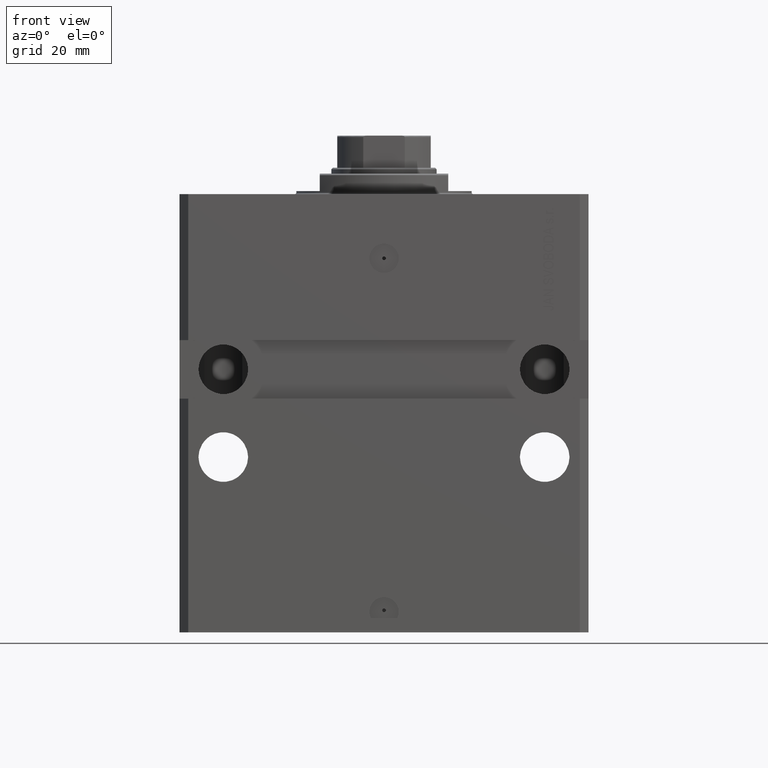
[diagram: clean part render]
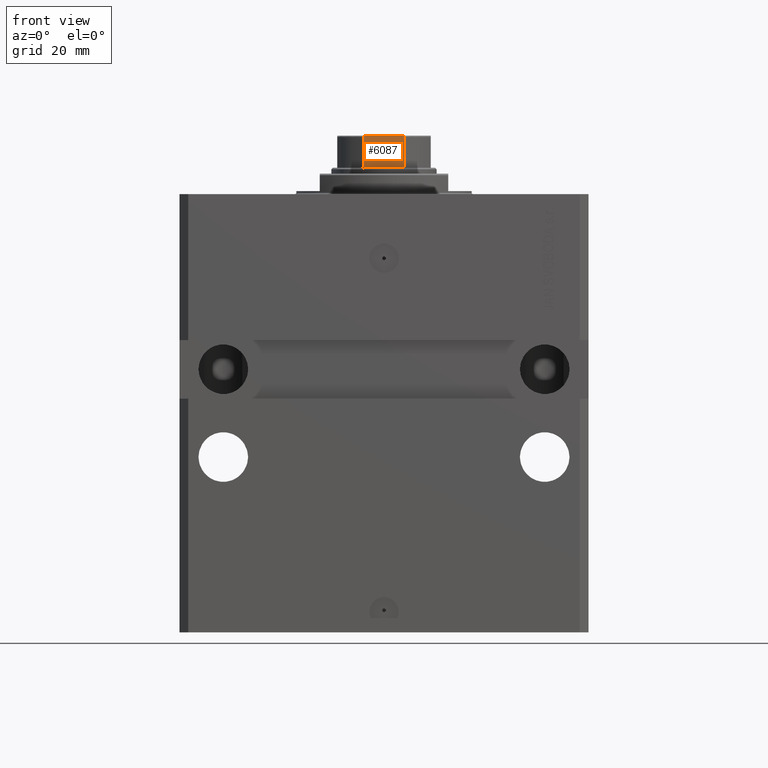
[diagram: same view with one face highlighted and labeled with its STEP entity id]
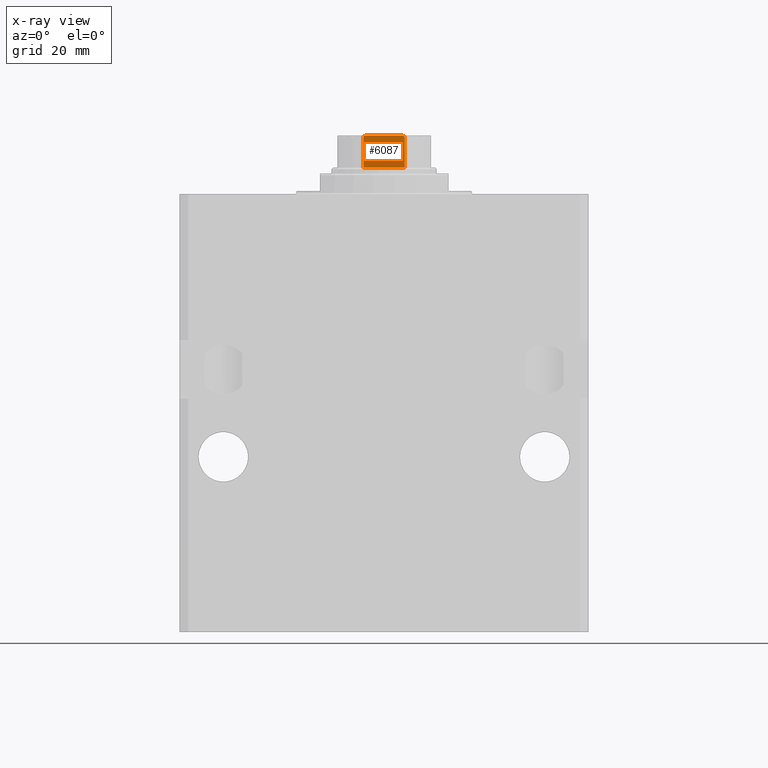
[diagram: x-ray of the same camera — body ghosted, the highlighted face saturated]
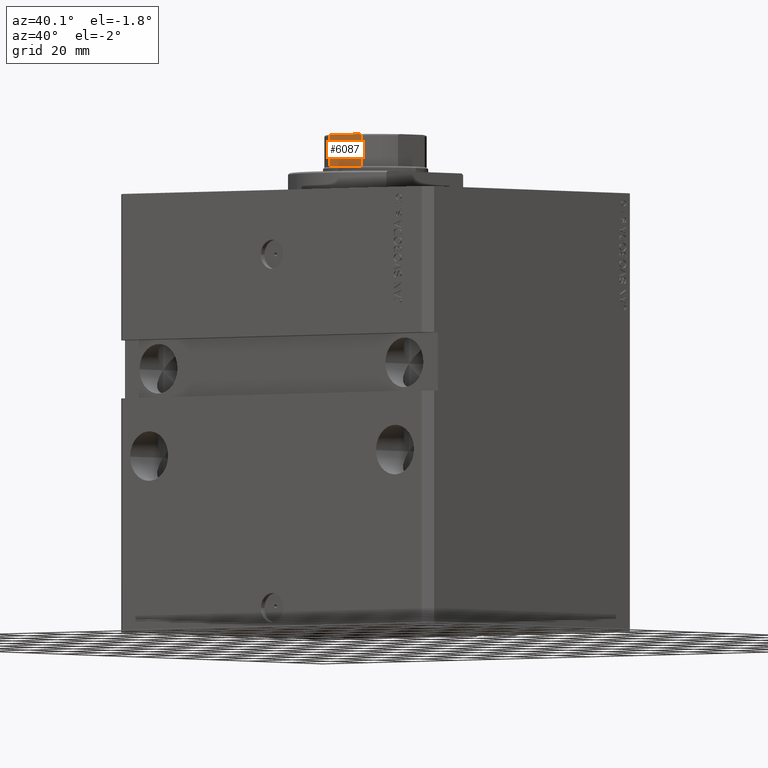
[diagram: same view with one face highlighted and labeled with its STEP entity id]
A machine part, front view. The second image highlights one B-rep face of the part: STEP entity #6087.
The next image is the same camera in x-ray: the body ghosted, the highlighted face saturated — about 0% of this face is hidden behind the body in this view.
A second angle (auxiliary view) of the same face is appended — the face is thin or edge-on in the first view.
In plain terms, the highlighted planar face has unit normal (-0, 1, 0).
Its self-contained STEP definition (entity closure, byte-faithful):
#157 = DIRECTION ( 'NONE',  ( 1.000000000000000000, 1.084202172485504434E-16, 0.000000000000000000 ) ) ;
#524 = CARTESIAN_POINT ( 'NONE',  ( -15.99999999999999645, -16.00000000000000355, 145.0000000000000284 ) ) ;
#911 = VERTEX_POINT ( 'NONE', #21505 ) ;
#1248 = DIRECTION ( 'NONE',  ( -1.000000000000000000, -1.084202172485504557E-16, 0.000000000000000000 ) ) ;
#1627 = CARTESIAN_POINT ( 'NONE',  ( 6.252433022027788390, -15.99999999999999645, 144.9806157152108028 ) ) ;
#2950 = EDGE_LOOP ( 'NONE', ( #17814, #28926, #8378, #10478, #40175, #35683 ) ) ;
#3762 = VERTEX_POINT ( 'NONE', #21296 ) ;
#4114 = VERTEX_POINT ( 'NONE', #9024 ) ;
#6087 = ADVANCED_FACE ( 'NONE', ( #42150 ), #38644, .F. ) ;
#7224 = EDGE_CURVE ( 'NONE', #34318, #17354, #9428, .T. ) ;
#7810 = VECTOR ( 'NONE', #157, 1000.000000000000000 ) ;
#8378 = ORIENTED_EDGE ( 'NONE', *, *, #37321, .F. ) ;
#8872 = CARTESIAN_POINT ( 'NONE',  ( 5.999773414835112284, -16.00000000000000000, 145.0000000000000284 ) ) ;
#9024 = CARTESIAN_POINT ( 'NONE',  ( -7.088723439378916247, -16.00000000000000000, 134.0000000000000000 ) ) ;
#9358 = VECTOR ( 'NONE', #39822, 1000.000000000000000 ) ;
#9428 = LINE ( 'NONE', #46842, #9358 ) ;
#9481 = CARTESIAN_POINT ( 'NONE',  ( -7.088723439378916247, -16.00000000000000000, 144.4999999999999716 ) ) ;
#10017 = EDGE_CURVE ( 'NONE', #3762, #32556, #45890, .T. ) ;
#10478 = ORIENTED_EDGE ( 'NONE', *, *, #41661, .T. ) ;
#11741 = DIRECTION ( 'NONE',  ( -0.000000000000000000, -0.000000000000000000, 1.000000000000000000 ) ) ;
#12333 = EDGE_CURVE ( 'NONE', #34318, #911, #26996, .T. ) ;
#12976 = CARTESIAN_POINT ( 'NONE',  ( 5.744562646538024175, -16.00000000000000355, 145.0000000000000284 ) ) ;
#14617 = CARTESIAN_POINT ( 'NONE',  ( -15.99999999999999645, -16.00000000000000355, 134.0000000000000000 ) ) ;
#16709 = CARTESIAN_POINT ( 'NONE',  ( -7.088723439378912694, -16.00000000000000000, 144.5655697653146206 ) ) ;
#16833 = CARTESIAN_POINT ( 'NONE',  ( 6.914772706552231973, -15.99999999999999645, 144.7576711345670617 ) ) ;
#17354 = VERTEX_POINT ( 'NONE', #12976 ) ;
#17566 = CARTESIAN_POINT ( 'NONE',  ( 7.055665994487682724, -16.00000000000000000, 144.6256422470904397 ) ) ;
#17814 = ORIENTED_EDGE ( 'NONE', *, *, #7224, .F. ) ;
#21167 = CARTESIAN_POINT ( 'NONE',  ( -6.620608993398032993, -16.00000000000000000, 144.8919184437073113 ) ) ;
#21296 = CARTESIAN_POINT ( 'NONE',  ( 7.088723439378916247, -16.00000000000000000, 133.9999999999999432 ) ) ;
#21505 = CARTESIAN_POINT ( 'NONE',  ( -7.088723439378916247, -16.00000000000000000, 144.4999999999999716 ) ) ;
#23945 = CARTESIAN_POINT ( 'NONE',  ( -6.744478600285234826, -16.00000000000000000, 144.8522542963852402 ) ) ;
#24174 = DIRECTION ( 'NONE',  ( -1.084202172485504557E-16, 1.000000000000000000, 0.000000000000000000 ) ) ;
#24186 = CARTESIAN_POINT ( 'NONE',  ( -7.055793701721102984, -16.00000000000000355, 144.6256279161198108 ) ) ;
#25318 = CARTESIAN_POINT ( 'NONE',  ( 7.088723439378916247, -16.00000000000000000, 144.4999999999999716 ) ) ;
#26601 = B_SPLINE_CURVE_WITH_KNOTS ( 'NONE', 3,
 ( #47996, #31783, #17566, #32761, #16833, #36021, #35774, #1627, #8872, #47018 ),
 .UNSPECIFIED., .F., .F.,
 ( 4, 2, 2, 2, 4 ),
 ( 5.632511157154733508E-17, 0.0001928955851490132573, 0.0003857911702979701903, 0.0007715823405958411761, 0.001543164681191583039 ),
 .UNSPECIFIED. ) ;
#26798 = EDGE_CURVE ( 'NONE', #32556, #17354, #26601, .T. ) ;
#26996 = B_SPLINE_CURVE_WITH_KNOTS ( 'NONE', 3,
 ( #43380, #31659, #35654, #21167, #23945, #46893, #32629, #24186, #16709, #9481 ),
 .UNSPECIFIED., .F., .F.,
 ( 4, 2, 2, 2, 4 ),
 ( 0.000000000000000000, 0.0007561879621635715426, 0.001134281943245365716, 0.001323328933786282590, 0.001512375924327199247 ),
 .UNSPECIFIED. ) ;
#28926 = ORIENTED_EDGE ( 'NONE', *, *, #12333, .T. ) ;
#30432 = LINE ( 'NONE', #34919, #33906 ) ;
#31659 = CARTESIAN_POINT ( 'NONE',  ( -5.999698100840009651, -16.00000000000000355, 145.0000000000000284 ) ) ;
#31783 = CARTESIAN_POINT ( 'NONE',  ( 7.088723439378916247, -16.00000000000000355, 144.5653596029795551 ) ) ;
#32556 = VERTEX_POINT ( 'NONE', #25318 ) ;
#32629 = CARTESIAN_POINT ( 'NONE',  ( -6.967626683430045098, -16.00000000000000355, 144.7212986014228875 ) ) ;
#32761 = CARTESIAN_POINT ( 'NONE',  ( 6.968475375953092410, -15.99999999999999645, 144.7205009019615716 ) ) ;
#33299 = LINE ( 'NONE', #14617, #7810 ) ;
#33906 = VECTOR ( 'NONE', #38898, 1000.000000000000000 ) ;
#34318 = VERTEX_POINT ( 'NONE', #41663 ) ;
#34919 = CARTESIAN_POINT ( 'NONE',  ( -7.088723439378916247, -16.00000000000000000, -0.001000000000001000089 ) ) ;
#35654 = CARTESIAN_POINT ( 'NONE',  ( -6.251780714621296475, -16.00000000000000355, 144.9805079891187063 ) ) ;
#35683 = ORIENTED_EDGE ( 'NONE', *, *, #26798, .T. ) ;
#35774 = CARTESIAN_POINT ( 'NONE',  ( 6.623467753754316512, -16.00000000000000355, 144.8910978819201887 ) ) ;
#36021 = CARTESIAN_POINT ( 'NONE',  ( 6.746962372739905511, -16.00000000000000355, 144.8511068297690656 ) ) ;
#37321 = EDGE_CURVE ( 'NONE', #4114, #911, #30432, .T. ) ;
#38083 = VECTOR ( 'NONE', #11741, 1000.000000000000000 ) ;
#38644 = PLANE ( 'NONE',  #38781 ) ;
#38781 = AXIS2_PLACEMENT_3D ( 'NONE', #524, #24174, #1248 ) ;
#38898 = DIRECTION ( 'NONE',  ( -0.000000000000000000, -0.000000000000000000, 1.000000000000000000 ) ) ;
#39822 = DIRECTION ( 'NONE',  ( 1.000000000000000000, 1.084202172485504434E-16, 0.000000000000000000 ) ) ;
#40175 = ORIENTED_EDGE ( 'NONE', *, *, #10017, .T. ) ;
#41656 = CARTESIAN_POINT ( 'NONE',  ( 7.088723439378916247, -16.00000000000000000, -0.001000000000001000089 ) ) ;
#41661 = EDGE_CURVE ( 'NONE', #4114, #3762, #33299, .T. ) ;
#41663 = CARTESIAN_POINT ( 'NONE',  ( -5.744562646538029504, -16.00000000000000355, 145.0000000000000284 ) ) ;
#42150 = FACE_OUTER_BOUND ( 'NONE', #2950, .T. ) ;
#43380 = CARTESIAN_POINT ( 'NONE',  ( -5.744562646538029504, -16.00000000000000355, 145.0000000000000284 ) ) ;
#45890 = LINE ( 'NONE', #41656, #38083 ) ;
#46842 = CARTESIAN_POINT ( 'NONE',  ( -15.99999999999999645, -16.00000000000000355, 145.0000000000000284 ) ) ;
#46893 = CARTESIAN_POINT ( 'NONE',  ( -6.914158745692660979, -16.00000000000000711, 144.7581288012990797 ) ) ;
#47018 = CARTESIAN_POINT ( 'NONE',  ( 5.744562646538024175, -16.00000000000000355, 145.0000000000000284 ) ) ;
#47996 = CARTESIAN_POINT ( 'NONE',  ( 7.088723439378916247, -16.00000000000000000, 144.4999999999999716 ) ) ;